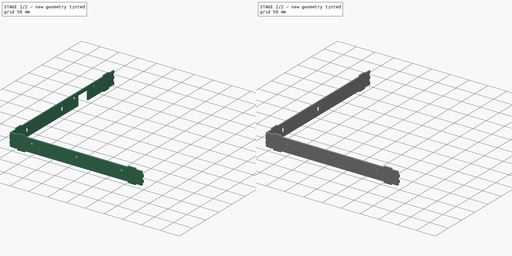
[diagram: build sequence overview — one tinted view per stage of 2, left to right]
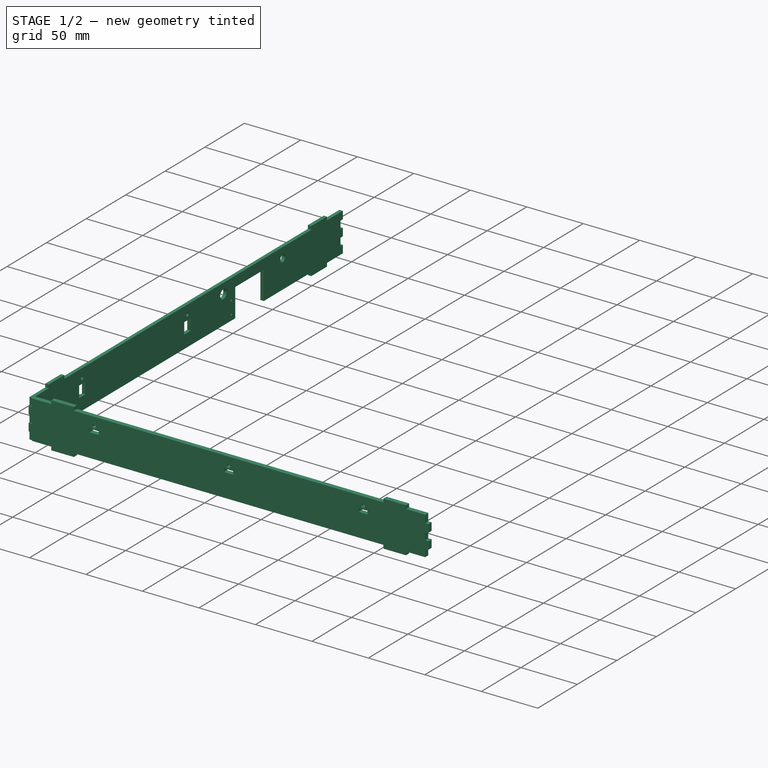
[diagram: stage 1 of 2 — iso view after this stage's code; geometry added in this stage tinted green]
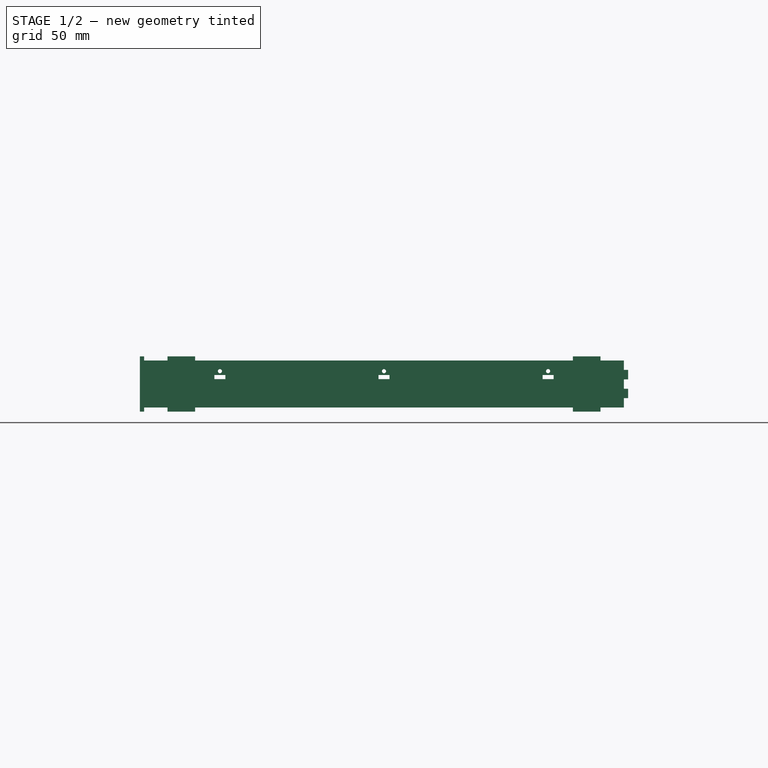
[diagram: stage 1 of 2 — front view after this stage's code; geometry added in this stage tinted green]
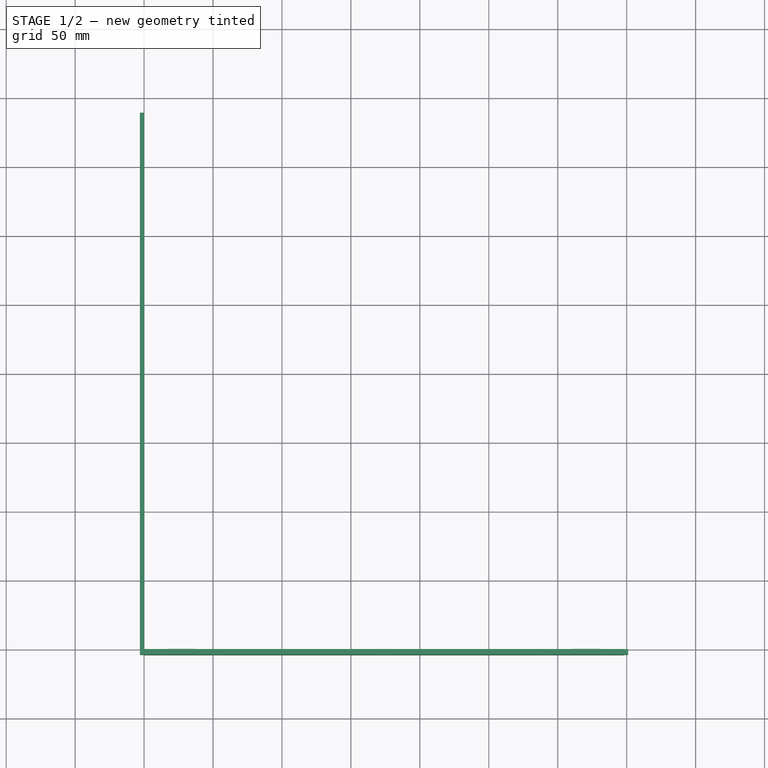
[diagram: stage 1 of 2 — top view after this stage's code; geometry added in this stage tinted green]
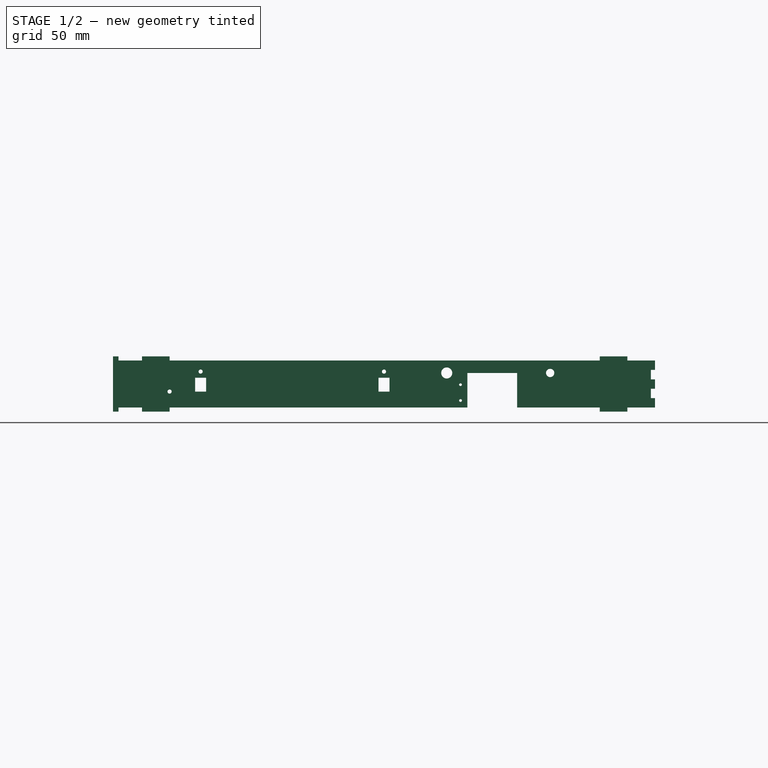
[diagram: stage 1 of 2 — right view after this stage's code; geometry added in this stage tinted green]
FCSTD DOCUMENT  (FreeCAD 0.19R24366 (Git))
Label: ri-walls
License: All rights reserved
LicenseURL: http://en.wikipedia.org/wiki/All_rights_reserved
objects: Sketcher::SketchObject×8, PartDesign::Pad×4, PartDesign::Body×4, Part::Part2DObjectPython×4
note: 24 computed .brp shape members not serialized (recipe doc carries the construction recipe); baked Part::Feature solids carry a one-line shape summary decoded from their .brp

FEATURE [PartDesign::Body] Body001  label="right"
  Group = -> [Sketch001,Pad001]
  Origin = -> Origin001
  Tip = -> Pad001
FEATURE [Sketcher::SketchObject] Sketch002
  FullyConstrained = true
  MapMode = 5
  Placement = pos=(0,0,0) rot=(1,0,0;1.5708rad)
  Support = -> [XZ_Plane002]
  expr: Constraints[119] = <<Sketch>>.Constraints.nosewidth
  expr: Constraints[117] = <<Sketch>>.Constraints.hole
  expr: Constraints[91] = <<Sketch>>.Constraints.base
  expr: Constraints[103] = <<Sketch>>.Constraints.thickness
  expr: Constraints[98] = <<Sketch>>.Constraints.baseplate
  expr: Constraints[102] = <<Sketch>>.Constraints.base - <<Sketch>>.Constraints.thickness
  expr: Constraints[104] = <<Sketch>>.Constraints.height
  expr: Constraints[105] = <<Sketch>>.Constraints.length
  sketch-geometry (54):
    g0: LineSegment StartX=0 StartY=34 StartZ=0 EndX=17 EndY=34 EndZ=0
    g1: LineSegment StartX=17 StartY=34 StartZ=0 EndX=17 EndY=37 EndZ=0
    g2: LineSegment StartX=17 StartY=37 StartZ=0 EndX=37 EndY=37 EndZ=0
    g3: LineSegment StartX=37 StartY=37 StartZ=0 EndX=37 EndY=34 EndZ=0
    g4: LineSegment StartX=37 StartY=34 StartZ=0 EndX=311 EndY=34 EndZ=0
    g5: LineSegment StartX=311 StartY=34 StartZ=0 EndX=311 EndY=37 EndZ=0
    g6: LineSegment StartX=311 StartY=37 StartZ=0 EndX=331 EndY=37 EndZ=0
    g7: LineSegment StartX=331 StartY=37 StartZ=0 EndX=331 EndY=34 EndZ=0
    g8: LineSegment StartX=331 StartY=34 StartZ=0 EndX=348 EndY=34 EndZ=0
    g9: LineSegment StartX=348 StartY=34 StartZ=0 EndX=348 EndY=27.2 EndZ=0
    g10: LineSegment StartX=348 StartY=27.2 StartZ=0 EndX=351 EndY=27.2 EndZ=0
    g11: LineSegment StartX=351 StartY=27.2 StartZ=0 EndX=351 EndY=20.4 EndZ=0
    g12: LineSegment StartX=351 StartY=20.4 StartZ=0 EndX=348 EndY=20.4 EndZ=0
    g13: LineSegment StartX=348 StartY=20.4 StartZ=0 EndX=348 EndY=13.6 EndZ=0
    g14: LineSegment StartX=348 StartY=13.6 StartZ=0 EndX=351 EndY=13.6 EndZ=0
    g15: LineSegment StartX=351 StartY=13.6 StartZ=0 EndX=351 EndY=6.8 EndZ=0
    g16: LineSegment StartX=351 StartY=6.8 StartZ=0 EndX=348 EndY=6.8 EndZ=0
    g17: LineSegment StartX=348 StartY=6.8 StartZ=0 EndX=348 EndY=0 EndZ=0
    g18: LineSegment StartX=348 StartY=0 StartZ=0 EndX=331 EndY=0 EndZ=0
    g19: LineSegment StartX=331 StartY=0 StartZ=0 EndX=331 EndY=-3 EndZ=0
    g20: LineSegment StartX=331 StartY=-3 StartZ=0 EndX=311 EndY=-3 EndZ=0
    g21: LineSegment StartX=311 StartY=-3 StartZ=0 EndX=311 EndY=-2.3839e-12 EndZ=0
    g22: LineSegment StartX=311 StartY=-2.3839e-12 StartZ=0 EndX=37 EndY=-2.3839e-12 EndZ=0
    g23: LineSegment StartX=37 StartY=-2.3839e-12 StartZ=0 EndX=37 EndY=-3 EndZ=0
    g24: LineSegment StartX=37 StartY=-3 StartZ=0 EndX=17 EndY=-3 EndZ=0
    g25: LineSegment StartX=17 StartY=-3 StartZ=0 EndX=17 EndY=0 EndZ=0
    g26: LineSegment StartX=17 StartY=0 StartZ=0 EndX=0 EndY=0 EndZ=0
    g27: LineSegment StartX=0 StartY=0 StartZ=0 EndX=0 EndY=6.8 EndZ=0
    g28: LineSegment StartX=0 StartY=6.8 StartZ=0 EndX=-3 EndY=6.8 EndZ=0
    g29: LineSegment StartX=-3 StartY=6.8 StartZ=0 EndX=-3 EndY=13.6 EndZ=0
    g30: LineSegment StartX=-3 StartY=13.6 StartZ=0 EndX=0 EndY=13.6 EndZ=0
    g31: LineSegment StartX=0 StartY=13.6 StartZ=0 EndX=0 EndY=20.4 EndZ=0
    g32: LineSegment StartX=0 StartY=20.4 StartZ=0 EndX=-3 EndY=20.4 EndZ=0
    g33: LineSegment StartX=-3 StartY=20.4 StartZ=0 EndX=-3 EndY=27.2 EndZ=0
    g34: LineSegment StartX=-3 StartY=27.2 StartZ=0 EndX=0 EndY=27.2 EndZ=0
    g35: LineSegment StartX=0 StartY=27.2 StartZ=0 EndX=0 EndY=34 EndZ=0
    g36: LineSegment StartX=170 StartY=23.5 StartZ=0 EndX=178 EndY=23.5 EndZ=0
    g37: LineSegment StartX=178 StartY=23.5 StartZ=0 EndX=178 EndY=20.5 EndZ=0
    g38: LineSegment StartX=178 StartY=20.5 StartZ=0 EndX=170 EndY=20.5 EndZ=0
    g39: LineSegment StartX=170 StartY=20.5 StartZ=0 EndX=170 EndY=23.5 EndZ=0
    g40: Circle CenterX=174 CenterY=26.3 CenterZ=0 NormalX=0 NormalY=0 NormalZ=1 AngleXU=0 Radius=1.5
    g41: GeomPoint X=174 Y=23.5 Z=0
    g42: LineSegment StartX=51 StartY=23.5 StartZ=0 EndX=59 EndY=23.5 EndZ=0
    g43: LineSegment StartX=59 StartY=23.5 StartZ=0 EndX=59 EndY=20.5 EndZ=0
    g44: LineSegment StartX=59 StartY=20.5 StartZ=0 EndX=51 EndY=20.5 EndZ=0
    g45: LineSegment StartX=51 StartY=20.5 StartZ=0 EndX=51 EndY=23.5 EndZ=0
    g46: LineSegment StartX=289 StartY=23.5 StartZ=0 EndX=297 EndY=23.5 EndZ=0
    g47: LineSegment StartX=297 StartY=23.5 StartZ=0 EndX=297 EndY=20.5 EndZ=0
    g48: LineSegment StartX=297 StartY=20.5 StartZ=0 EndX=289 EndY=20.5 EndZ=0
    g49: LineSegment StartX=289 StartY=20.5 StartZ=0 EndX=289 EndY=23.5 EndZ=0
    g50: Circle CenterX=293 CenterY=26.3 CenterZ=0 NormalX=0 NormalY=0 NormalZ=1 AngleXU=0 Radius=1.5
    g51: Circle CenterX=55 CenterY=26.3 CenterZ=0 NormalX=0 NormalY=0 NormalZ=1 AngleXU=0 Radius=1.5
    g52: GeomPoint X=293 Y=23.5 Z=0
    g53: GeomPoint X=55 Y=23.5 Z=0
  constraints (155):
    c: PointOnObject(g0,g-2)
    c: Horizontal(g0)
    c: Coincident(g0,g1)
    c: Coincident(g1,g2)
    c: Horizontal(g2)
    c: Coincident(g2,g3)
    c: Vertical(g3)
    c: Coincident(g3,g4)
    c: Horizontal(g4)
    c: Coincident(g4,g5)
    c: Vertical(g5)
    c: Coincident(g5,g6)
    c: Horizontal(g6)
    c: Coincident(g6,g7)
    c: Vertical(g7)
    c: Coincident(g7,g8)
    c: Horizontal(g8)
    c: Coincident(g8,g9)
    c: Vertical(g9)
    c: Coincident(g9,g10)
    c: Horizontal(g10)
    c: Coincident(g10,g11)
    c: Vertical(g11)
    c: Coincident(g11,g12)
    c: Horizontal(g12)
    c: Coincident(g12,g13)
    c: Vertical(g13)
    c: Coincident(g13,g14)
    c: Horizontal(g14)
    c: Coincident(g14,g15)
    c: Vertical(g15)
    c: Coincident(g15,g16)
    c: Horizontal(g16)
    c: Coincident(g16,g17)
    c: Vertical(g17)
    c: Coincident(g17,g18)
    c: Horizontal(g18)
    c: Coincident(g18,g19)
    c: Vertical(g19)
    c: Coincident(g19,g20)
    c: Horizontal(g20)
    c: Coincident(g20,g21)
    c: Vertical(g21)
    c: Coincident(g21,g22)
    c: Horizontal(g22)
    c: Coincident(g22,g23)
    c: Vertical(g23)
    c: Coincident(g23,g24)
    c: Horizontal(g24)
    c: Coincident(g24,g25)
    c: Vertical(g25)
    c: Coincident(g25,g26)
    c: Horizontal(g26)
    c: Coincident(g26,g27)
    c: Vertical(g27)
    c: Coincident(g27,g28)
    c: Horizontal(g28)
    c: Coincident(g28,g29)
    c: Vertical(g29)
    c: Coincident(g29,g30)
    c: Horizontal(g30)
    c: Coincident(g30,g31)
    c: Vertical(g31)
    c: Coincident(g31,g32)
    c: Horizontal(g32)
    c: Coincident(g32,g33)
    c: Vertical(g33)
    c: Coincident(g33,g34)
    c: Horizontal(g34)
    c: Coincident(g34,g35)
    c: Vertical(g35)
    c: Coincident(g35,g0)
    c: Equal(g34,g32)
    c: Equal(g32,g30)
    c: Equal(g28,g10)
    c: Equal(g10,g12)
    c: Equal(g12,g14)
    c: Equal(g14,g16)
    c: Equal(g33,g35)
    c: Equal(g35,g31)
    c: Equal(g31,g29)
    c: Equal(g29,g27)
    c: Equal(g27,g9)
    c: Equal(g9,g11)
    c: Equal(g11,g13)
    c: Equal(g13,g15)
    c: Equal(g15,g17)
    c: Equal(g20,g6)
    c: Equal(g6,g2)
    c: Equal(g2,g24)
    c: Vertical(g1)
    c: DistanceX(g2,g2) = 20
    c: Equal(g25,g23)
    c: Equal(g23,g1)
    c: Equal(g1,g3)
    c: Equal(g3,g5)
    c: Equal(g5,g7)
    c: Equal(g7,g19)
    c: DistanceY(g1,g1) = 3
    c: Equal(g0,g26)
    c: Equal(g26,g8)
    c: Equal(g8,g18)
    c: DistanceX(g0,g0) = 17
    c: DistanceX(g34,g34) = 3
    c: DistanceY(g26,g0) = 34
    c: DistanceX(g33,g10) = 354
    c: Coincident(g26,g-1)
    c: Coincident(g36,g37)
    c: Coincident(g37,g38)
    c: Coincident(g38,g39)
    c: Coincident(g39,g36)
    c: Horizontal(g36)
    c: Horizontal(g38)
    c: Vertical(g37)
    c: Vertical(g39)
    c: Symmetric(g36,g36,g41)
    c: Vertical(g41,g40)
    c: Diameter(g40) = 3
    c: DistanceY(g41,g40) = 2.8
    c: DistanceX(g36,g36) = 8
    c: DistanceY(g39,g39) = 3
    c: DistanceY(g36,g0) = 10.5
    c: DistanceX(g33,g36) = 173
    c: Coincident(g42,g43)
    c: Coincident(g43,g44)
    c: Coincident(g44,g45)
    c: Coincident(g45,g42)
    c: Horizontal(g42)
    c: Horizontal(g44)
    c: Vertical(g43)
    c: Vertical(g45)
    c: Coincident(g46,g47)
    c: Coincident(g47,g48)
    c: Coincident(g48,g49)
    c: Coincident(g49,g46)
    c: Horizontal(g46)
    c: Horizontal(g48)
    c: Vertical(g47)
    c: Vertical(g49)
    c: Equal(g49,g39)
    c: Equal(g39,g45)
    c: Equal(g44,g38)
    c: Equal(g38,g48)
    c: Horizontal(g48,g38)
    c: Horizontal(g38,g44)
    c: DistanceX(g22,g44) = 14
    c: DistanceX(g47,g21) = 14
    c: Equal(g51,g40)
    c: Equal(g40,g50)
    c: Horizontal(g50,g40)
    c: Horizontal(g40,g51)
    c: Symmetric(g46,g46,g52)
    c: Vertical(g52,g50)
    c: Symmetric(g42,g42,g53)
    c: Vertical(g53,g51)
FEATURE [PartDesign::Pad] Pad002
  Direction = (1,1,1)
  Length = 4
  Length2 = 100
  Placement = pos=(0,0,0) rot=(1,0,0;1.5708rad)
  Profile = -> Sketch002
  Refine = true
  Type = 0
  expr: Length = 4mm
FEATURE [PartDesign::Body] Body002  label="bottom"
  Group = -> [Sketch002,Pad002]
  Origin = -> Origin002
  Placement = pos=(0,389,0) rot=(0,0,1;0rad)
  Tip = -> Pad002
  expr: .Placement.Base.y = <<Sketch001>>.Constraints.length - <<Sketch>>.Constraints.thickness
FEATURE [Sketcher::SketchObject] Sketch003
  FullyConstrained = true
  MapMode = 5
  Placement = pos=(0,0,0) rot=(0.57735,0.57735,0.57735;2.0944rad)
  Support = -> [YZ_Plane003]
  expr: Constraints[91] = <<Sketch>>.Constraints.baseplate
  expr: Constraints[131] = <<Sketch>>.Constraints.hole
  expr: Constraints[90] = <<Sketch>>.Constraints.base
  expr: Constraints[134] = <<Sketch>>.Constraints.nosedistance
  expr: Constraints[104] = <<Sketch>>.Constraints.thickness
  expr: Constraints[92] = <<Sketch>>.Constraints.thickness
  expr: Constraints[93] = <<Sketch>>.Constraints.height
  expr: Constraints[132] = <<Sketch>>.Constraints.noseheight
  expr: Constraints[135] = Sketch001.Constraints.firstnose
  expr: Constraints[124] = <<Sketch>>.Constraints.holedistance
  expr: Constraints[136] = <<Sketch001>>.Constraints.secondnose
  expr: Constraints[94] = <<Sketch001>>.Constraints.length
  expr: Constraints[133] = <<Sketch>>.Constraints.nosewidth
  sketch-geometry (58):
    g0: LineSegment StartX=17 StartY=37 StartZ=0 EndX=17 EndY=34 EndZ=0
    g1: LineSegment StartX=17 StartY=34 StartZ=0 EndX=-3 EndY=34 EndZ=0
    g2: LineSegment StartX=-3 StartY=34 StartZ=0 EndX=-3 EndY=27.2 EndZ=0
    g3: LineSegment StartX=-3 StartY=27.2 StartZ=0 EndX=3.957e-13 EndY=27.2 EndZ=0
    g4: LineSegment StartX=3.957e-13 StartY=27.2 StartZ=0 EndX=3.957e-13 EndY=20.4 EndZ=0
    g5: LineSegment StartX=3.957e-13 StartY=20.4 StartZ=0 EndX=-3 EndY=20.4 EndZ=0
    g6: LineSegment StartX=-3 StartY=20.4 StartZ=0 EndX=-3 EndY=13.6 EndZ=0
    g7: LineSegment StartX=-3 StartY=13.6 StartZ=0 EndX=3.957e-13 EndY=13.6 EndZ=0
    g8: LineSegment StartX=3.957e-13 StartY=13.6 StartZ=0 EndX=3.957e-13 EndY=6.8 EndZ=0
    g9: LineSegment StartX=3.957e-13 StartY=6.8 StartZ=0 EndX=-3 EndY=6.8 EndZ=0
    g10: LineSegment StartX=-3 StartY=6.8 StartZ=0 EndX=-3 EndY=0 EndZ=0
    g11: LineSegment StartX=-3 StartY=0 StartZ=0 EndX=17 EndY=0 EndZ=0
    g12: LineSegment StartX=17 StartY=0 StartZ=0 EndX=17 EndY=-3 EndZ=0
    g13: LineSegment StartX=17 StartY=-3 StartZ=0 EndX=37 EndY=-3 EndZ=0
    g14: LineSegment StartX=37 StartY=-3 StartZ=0 EndX=37 EndY=0 EndZ=0
    g15: LineSegment StartX=349 StartY=3.72129e-11 StartZ=0 EndX=349 EndY=-3 EndZ=0
    g16: LineSegment StartX=349 StartY=-3 StartZ=0 EndX=369 EndY=-3 EndZ=0
    g17: LineSegment StartX=369 StartY=-3 StartZ=0 EndX=369 EndY=3.76086e-11 EndZ=0
    g18: LineSegment StartX=369 StartY=3.76086e-11 StartZ=0 EndX=389 EndY=3.76086e-11 EndZ=0
    g19: LineSegment StartX=389 StartY=3.76086e-11 StartZ=0 EndX=389 EndY=6.8 EndZ=0
    g20: LineSegment StartX=389 StartY=6.8 StartZ=0 EndX=386 EndY=6.8 EndZ=0
    g21: LineSegment StartX=386 StartY=6.8 StartZ=0 EndX=386 EndY=13.6 EndZ=0
    g22: LineSegment StartX=386 StartY=13.6 StartZ=0 EndX=389 EndY=13.6 EndZ=0
    g23: LineSegment StartX=389 StartY=13.6 StartZ=0 EndX=389 EndY=20.4 EndZ=0
    g24: LineSegment StartX=389 StartY=20.4 StartZ=0 EndX=386 EndY=20.4 EndZ=0
    g25: LineSegment StartX=386 StartY=20.4 StartZ=0 EndX=386 EndY=27.2 EndZ=0
    g26: LineSegment StartX=386 StartY=27.2 StartZ=0 EndX=389 EndY=27.2 EndZ=0
    g27: LineSegment StartX=389 StartY=27.2 StartZ=0 EndX=389 EndY=34 EndZ=0
    g28: LineSegment StartX=389 StartY=34 StartZ=0 EndX=369 EndY=34 EndZ=0
    g29: LineSegment StartX=369 StartY=34 StartZ=0 EndX=369 EndY=37 EndZ=0
    g30: LineSegment StartX=369 StartY=37 StartZ=0 EndX=349 EndY=37 EndZ=0
    g31: LineSegment StartX=349 StartY=37 StartZ=0 EndX=349 EndY=34 EndZ=0
    g32: LineSegment StartX=349 StartY=34 StartZ=0 EndX=37 EndY=34 EndZ=0
    g33: LineSegment StartX=37 StartY=34 StartZ=0 EndX=37 EndY=37 EndZ=0
    g34: LineSegment StartX=37 StartY=37 StartZ=0 EndX=17 EndY=37 EndZ=0
    g35: LineSegment StartX=55.5 StartY=21.5 StartZ=0 EndX=63.5 EndY=21.5 EndZ=0
    g36: LineSegment StartX=63.5 StartY=21.5 StartZ=0 EndX=63.5 EndY=11.5 EndZ=0
    g37: LineSegment StartX=63.5 StartY=11.5 StartZ=0 EndX=55.5 EndY=11.5 EndZ=0
    g38: LineSegment StartX=55.5 StartY=11.5 StartZ=0 EndX=55.5 EndY=21.5 EndZ=0
    g39: LineSegment StartX=188.5 StartY=21.5 StartZ=0 EndX=196.5 EndY=21.5 EndZ=0
    g40: LineSegment StartX=196.5 StartY=21.5 StartZ=0 EndX=196.5 EndY=11.5 EndZ=0
    g41: LineSegment StartX=196.5 StartY=11.5 StartZ=0 EndX=188.5 EndY=11.5 EndZ=0
    g42: LineSegment StartX=188.5 StartY=11.5 StartZ=0 EndX=188.5 EndY=21.5 EndZ=0
    g43: Circle CenterX=59.5 CenterY=26 CenterZ=0 NormalX=0 NormalY=0 NormalZ=1 AngleXU=0 Radius=1.5
    g44: Circle CenterX=192.5 CenterY=26 CenterZ=0 NormalX=0 NormalY=0 NormalZ=1 AngleXU=0 Radius=1.5
    g45: GeomPoint X=59.5 Y=21.5 Z=0
    g46: GeomPoint X=192.5 Y=21.5 Z=0
    g47: LineSegment StartX=349 StartY=3.72129e-11 StartZ=0 EndX=289 EndY=3.72129e-11 EndZ=0
    g48: LineSegment StartX=289 StartY=3.72129e-11 StartZ=0 EndX=289 EndY=25 EndZ=0
    g49: LineSegment StartX=289 StartY=25 StartZ=0 EndX=253 EndY=25 EndZ=0
    g50: LineSegment StartX=253 StartY=25 StartZ=0 EndX=253 EndY=0 EndZ=0
    g51: LineSegment StartX=253 StartY=0 StartZ=0 EndX=37 EndY=0 EndZ=0
    g52: Circle CenterX=238 CenterY=25 CenterZ=0 NormalX=0 NormalY=0 NormalZ=1 AngleXU=0 Radius=4
    g53: GeomPoint X=289 Y=12.5 Z=0
    g54: Circle CenterX=313 CenterY=25 CenterZ=0 NormalX=0 NormalY=0 NormalZ=1 AngleXU=0 Radius=3
    g55: Circle CenterX=248 CenterY=16.5 CenterZ=0 NormalX=0 NormalY=0 NormalZ=1 AngleXU=0 Radius=1
    g56: Circle CenterX=248 CenterY=5 CenterZ=0 NormalX=0 NormalY=0 NormalZ=1 AngleXU=0 Radius=1
    g57: Circle CenterX=37 CenterY=11.5 CenterZ=0 NormalX=0 NormalY=0 NormalZ=1 AngleXU=0 Radius=1.5
  constraints (168):
    c: Coincident(g0,g1)
    c: Horizontal(g1)
    c: Coincident(g1,g2)
    c: Vertical(g2)
    c: Coincident(g2,g3)
    c: Horizontal(g3)
    c: Coincident(g3,g4)
    c: Vertical(g4)
    c: Coincident(g4,g5)
    c: Horizontal(g5)
    c: Coincident(g5,g6)
    c: Vertical(g6)
    c: Coincident(g6,g7)
    c: Horizontal(g7)
    c: Coincident(g7,g8)
    c: Vertical(g8)
    c: Coincident(g8,g9)
    c: Horizontal(g9)
    c: Coincident(g9,g10)
    c: Vertical(g10)
    c: Coincident(g10,g11)
    c: Horizontal(g11)
    c: Coincident(g11,g12)
    c: Vertical(g12)
    c: Coincident(g12,g13)
    c: Horizontal(g13)
    c: Coincident(g13,g14)
    c: Vertical(g14)
    c: Vertical(g15)
    c: Coincident(g15,g16)
    c: Horizontal(g16)
    c: Coincident(g16,g17)
    c: Vertical(g17)
    c: Coincident(g17,g18)
    c: Horizontal(g18)
    c: Coincident(g18,g19)
    c: Vertical(g19)
    c: Coincident(g19,g20)
    c: Horizontal(g20)
    c: Coincident(g20,g21)
    c: Vertical(g21)
    c: Coincident(g21,g22)
    c: Horizontal(g22)
    c: Coincident(g22,g23)
    c: Vertical(g23)
    c: Coincident(g23,g24)
    c: Horizontal(g24)
    c: Coincident(g24,g25)
    c: Vertical(g25)
    c: Coincident(g25,g26)
    c: Horizontal(g26)
    c: Coincident(g26,g27)
    c: Vertical(g27)
    c: Coincident(g27,g28)
    c: Horizontal(g28)
    c: Coincident(g28,g29)
    c: Vertical(g29)
    c: Coincident(g29,g30)
    c: Horizontal(g30)
    c: Coincident(g30,g31)
    c: Vertical(g31)
    c: Coincident(g31,g32)
    c: Horizontal(g32)
    c: Coincident(g32,g33)
    c: Vertical(g33)
    c: Coincident(g33,g34)
    c: Coincident(g34,g0)
    c: Horizontal(g34)
    c: Vertical(g0)
    c: Equal(g0,g33)
    c: Equal(g33,g12)
    c: Equal(g12,g14)
    c: Equal(g14,g31)
    c: Equal(g31,g29)
    c: Equal(g29,g17)
    c: Equal(g17,g15)
    c: Equal(g16,g18)
    c: Equal(g18,g28)
    c: Equal(g28,g30)
    c: Equal(g30,g34)
    c: Equal(g34,g1)
    c: Equal(g1,g11)
    c: Equal(g11,g13)
    c: Equal(g3,g5)
    c: Equal(g5,g7)
    c: Equal(g7,g9)
    c: Equal(g9,g26)
    c: Equal(g26,g24)
    c: Equal(g24,g22)
    c: Equal(g22,g20)
    c: DistanceX(g34,g34) = 20
    c: DistanceY(g0,g0) = 3
    c: DistanceX(g3,g3) = 3
    c: DistanceY(g10,g1) = 34
    c: DistanceX(g1,g27) = 392
    c: Equal(g19,g21)
    c: Equal(g21,g23)
    c: Equal(g23,g25)
    c: Equal(g25,g27)
    c: Equal(g27,g10)
    c: Equal(g10,g8)
    c: Equal(g8,g6)
    c: Equal(g6,g4)
    c: Horizontal(g10,g-1)
    c: DistanceX(g10,g-1) = 3
    c: Coincident(g35,g36)
    c: Coincident(g36,g37)
    c: Coincident(g37,g38)
    c: Coincident(g38,g35)
    c: Horizontal(g35)
    c: Horizontal(g37)
    c: Vertical(g36)
    c: Vertical(g38)
    c: Coincident(g39,g40)
    c: Coincident(g40,g41)
    c: Coincident(g41,g42)
    c: Coincident(g42,g39)
    c: Horizontal(g39)
    c: Horizontal(g41)
    c: Vertical(g40)
    c: Vertical(g42)
    c: Symmetric(g35,g35,g45)
    c: Symmetric(g39,g39,g46)
    c: Vertical(g45,g43)
    c: DistanceY(g45,g43) = 4.5
    c: Horizontal(g43,g44)
    c: Horizontal(g39,g35)
    c: Equal(g38,g42)
    c: Equal(g39,g35)
    c: Equal(g43,g44)
    c: Vertical(g44,g46)
    c: Diameter(g43) = 3
    c: DistanceY(g38,g38) = 10
    c: DistanceX(g35,g35) = 8
    c: DistanceY(g35,g1) = 12.5
    c: DistanceX(g1,g35) = 58.5
    c: DistanceX(g1,g39) = 191.5
    c: Coincident(g15,g47)
    c: Coincident(g47,g48)
    c: Coincident(g48,g49)
    c: Horizontal(g49)
    c: Coincident(g49,g50)
    c: Vertical(g50)
    c: Coincident(g50,g51)
    c: Horizontal(g51)
    c: Vertical(g48)
    c: Coincident(g51,g14)
    c: Horizontal(g47)
    c: DistanceX(g49,g49) = 36
    c: DistanceY(g50,g50) = 25
    c: DistanceX(g48,g27) = 100
    c: Equal(g48,g50)
    c: Diameter(g52) = 8
    c: Symmetric(g48,g47,g53)
    c: DistanceX(g52,g50) = 15
    c: Diameter(g54) = 6
    c: Horizontal(g54,g48)
    c: DistanceX(g48,g54) = 24
    c: Horizontal(g52,g49)
    c: Equal(g56,g55)
    c: Diameter(g55) = 2
    c: Vertical(g55,g56)
    c: DistanceY(g56,g55) = 11.5
    c: DistanceY(g50,g56) = 5
    c: DistanceX(g55,g49) = 5
    c: Equal(g43,g57)
    c: Horizontal(g57,g37)
    c: Vertical(g57,g32)
FEATURE [PartDesign::Pad] Pad003
  Direction = (1,1,1)
  Length = 3
  Length2 = 100
  Placement = pos=(0,0,0) rot=(0.57735,0.57735,0.57735;2.0944rad)
  Profile = -> Sketch003
  Refine = true
  Reversed = true
  Type = 0
  expr: Length = <<Sketch>>.Constraints.thickness
FEATURE [PartDesign::Body] Body003  label="left"
  Group = -> [Sketch003,Pad003]
  Origin = -> Origin003
  Placement = pos=(351,0,0) rot=(0,0,1;0rad)
  Tip = -> Pad003
  expr: .Placement.Base.x = <<Sketch>>.Constraints.length - <<Sketch>>.Constraints.thickness
FEATURE [Part::Part2DObjectPython] Shape2DView  # Draft 2D object (typed FeaturePython)
  Base = -> Pad
  FaceNumbers = [47]
  FuseArch = false
  HiddenLines = false
  InPlace = true
  Projection = (0,-1,0)
  ProjectionMode = 0
  SegmentLength = 0.05
  Tessellation = false
  VisibleOnly = false
FEATURE [Sketcher::SketchObject] Sketch004  label="top001"
  FullyConstrained = false
  sketch-geometry (46):
    g0: LineSegment StartX=-27.2 StartY=2e-16 StartZ=0 EndX=-34 EndY=2e-16 EndZ=0
    g1: LineSegment StartX=-27.2 StartY=2e-16 StartZ=0 EndX=-27.2 EndY=-3 EndZ=0
    g2: LineSegment StartX=-27.2 StartY=-3 StartZ=0 EndX=-20.4 EndY=-3 EndZ=0
    g3: LineSegment StartX=-20.4 StartY=-3 StartZ=0 EndX=-20.4 EndY=0 EndZ=0
    g4: LineSegment StartX=-20.4 StartY=-2e-16 StartZ=0 EndX=-13.6 EndY=-2e-16 EndZ=0
    g5: LineSegment StartX=-13.6 StartY=-2e-16 StartZ=0 EndX=-13.6 EndY=-3 EndZ=0
    g6: LineSegment StartX=-13.6 StartY=-3 StartZ=0 EndX=-6.8 EndY=-3 EndZ=0
    g7: LineSegment StartX=-6.8 StartY=-3 StartZ=0 EndX=-6.8 EndY=0 EndZ=0
    g8: LineSegment StartX=-6.8 StartY=0 StartZ=0 EndX=9e-16 EndY=0 EndZ=0
    g9: LineSegment StartX=7e-16 StartY=0 StartZ=0 EndX=7e-16 EndY=17 EndZ=0
    g10: LineSegment StartX=7e-16 StartY=17 StartZ=0 EndX=3 EndY=17 EndZ=0
    g11: LineSegment StartX=3 StartY=17 StartZ=0 EndX=3 EndY=37 EndZ=0
    g12: LineSegment StartX=3 StartY=37 StartZ=0 EndX=9e-16 EndY=37 EndZ=0
    g13: LineSegment StartX=7e-16 StartY=37 StartZ=0 EndX=7e-16 EndY=311 EndZ=0
    g14: LineSegment StartX=7e-16 StartY=311 StartZ=0 EndX=3 EndY=311 EndZ=0
    g15: LineSegment StartX=3 StartY=311 StartZ=0 EndX=3 EndY=331 EndZ=0
    g16: LineSegment StartX=3 StartY=331 StartZ=0 EndX=9e-16 EndY=331 EndZ=0
    g17: LineSegment StartX=7e-16 StartY=331 StartZ=0 EndX=7e-16 EndY=348 EndZ=0
    g18: LineSegment StartX=7e-16 StartY=348 StartZ=0 EndX=-6.8 EndY=348 EndZ=0
    g19: LineSegment StartX=-6.8 StartY=348 StartZ=0 EndX=-6.8 EndY=351 EndZ=0
    g20: LineSegment StartX=-6.8 StartY=351 StartZ=0 EndX=-13.6 EndY=351 EndZ=0
    g21: LineSegment StartX=-13.6 StartY=351 StartZ=0 EndX=-13.6 EndY=348 EndZ=0
    g22: LineSegment StartX=-13.6 StartY=348 StartZ=0 EndX=-20.4 EndY=348 EndZ=0
    g23: LineSegment StartX=-20.4 StartY=351 StartZ=0 EndX=-20.4 EndY=348 EndZ=0
    g24: LineSegment StartX=-27.2 StartY=351 StartZ=0 EndX=-20.4 EndY=351 EndZ=0
    g25: LineSegment StartX=-27.2 StartY=348 StartZ=0 EndX=-27.2 EndY=351 EndZ=0
    g26: LineSegment StartX=-34 StartY=348 StartZ=0 EndX=-27.2 EndY=348 EndZ=0
    g27: LineSegment StartX=-34 StartY=331 StartZ=0 EndX=-34 EndY=348 EndZ=0
    g28: LineSegment StartX=-37 StartY=331 StartZ=0 EndX=-34 EndY=331 EndZ=0
    g29: LineSegment StartX=-37 StartY=331 StartZ=0 EndX=-37 EndY=311 EndZ=0
    g30: LineSegment StartX=-37 StartY=311 StartZ=0 EndX=-34 EndY=311 EndZ=0
    g31: LineSegment StartX=-34 StartY=311 StartZ=0 EndX=-34 EndY=37 EndZ=0
    g32: LineSegment StartX=-34 StartY=37 StartZ=0 EndX=-37 EndY=37 EndZ=0
    g33: LineSegment StartX=-37 StartY=37 StartZ=0 EndX=-37 EndY=17 EndZ=0
    g34: LineSegment StartX=-34 StartY=17 StartZ=0 EndX=-37 EndY=17 EndZ=0
    g35: LineSegment StartX=-34 StartY=2e-16 StartZ=0 EndX=-34 EndY=17 EndZ=0
    g36: LineSegment StartX=-21.5 StartY=285 StartZ=0 EndX=-21.5 EndY=293 EndZ=0
    g37: LineSegment StartX=-21.5 StartY=293 StartZ=0 EndX=-11.5 EndY=293 EndZ=0
    g38: LineSegment StartX=-11.5 StartY=293 StartZ=0 EndX=-11.5 EndY=285 EndZ=0
    g39: LineSegment StartX=-11.5 StartY=285 StartZ=0 EndX=-21.5 EndY=285 EndZ=0
    g40: LineSegment StartX=-21.5 StartY=55 StartZ=0 EndX=-21.5 EndY=63 EndZ=0
    g41: LineSegment StartX=-21.5 StartY=63 StartZ=0 EndX=-11.5 EndY=63 EndZ=0
    g42: LineSegment StartX=-11.5 StartY=63 StartZ=0 EndX=-11.5 EndY=55 EndZ=0
    g43: LineSegment StartX=-11.5 StartY=55 StartZ=0 EndX=-21.5 EndY=55 EndZ=0
    g44: Circle CenterX=-26 CenterY=289 CenterZ=0 NormalX=0 NormalY=0 NormalZ=1 AngleXU=1.5708 Radius=1.5
    g45: Circle CenterX=-26 CenterY=59 CenterZ=0 NormalX=0 NormalY=0 NormalZ=1 AngleXU=1.5708 Radius=1.5
FEATURE [Part::Part2DObjectPython] Shape2DView001  # Draft 2D object (typed FeaturePython)
  Base = -> Pad001
  FaceNumbers = [47]
  FuseArch = false
  HiddenLines = false
  InPlace = true
  Projection = (-1,0,0)
  ProjectionMode = 0
  SegmentLength = 0.05
  Tessellation = false
  VisibleOnly = false
FEATURE [Sketcher::SketchObject] Sketch005  label="right001"
  FullyConstrained = false
  sketch-geometry (46):
    g0: LineSegment StartX=-27.2 StartY=3 StartZ=0 EndX=-27.2 EndY=2.22431e-11 EndZ=0
    g1: LineSegment StartX=-27.2 StartY=2.2242e-11 StartZ=0 EndX=-20.4 EndY=2.22443e-11 EndZ=0
    g2: LineSegment StartX=-20.4 StartY=2.22443e-11 StartZ=0 EndX=-20.4 EndY=3 EndZ=0
    g3: LineSegment StartX=-20.4 StartY=3 StartZ=0 EndX=-13.6 EndY=3 EndZ=0
    g4: LineSegment StartX=-13.6 StartY=3 StartZ=0 EndX=-13.6 EndY=-4.9e-15 EndZ=0
    g5: LineSegment StartX=-13.6 StartY=-5.9e-15 StartZ=0 EndX=-6.8 EndY=-3.6e-15 EndZ=0
    g6: LineSegment StartX=-6.8 StartY=-3.6e-15 StartZ=0 EndX=-6.8 EndY=3 EndZ=0
    g7: LineSegment StartX=-6.8 StartY=3 StartZ=0 EndX=-2.7e-15 EndY=3 EndZ=0
    g8: LineSegment StartX=-5e-16 StartY=3 StartZ=0 EndX=1.06e-14 EndY=-17 EndZ=0
    g9: LineSegment StartX=1.06e-14 StartY=-17 StartZ=0 EndX=3 EndY=-17 EndZ=0
    g10: LineSegment StartX=3 StartY=-17 StartZ=0 EndX=3 EndY=-37 EndZ=0
    g11: LineSegment StartX=3 StartY=-37 StartZ=0 EndX=4.67231e-11 EndY=-37 EndZ=0
    g12: LineSegment StartX=4.67226e-11 StartY=-37 StartZ=0 EndX=4.68958e-11 EndY=-349 EndZ=0
    g13: LineSegment StartX=4.68958e-11 StartY=-349 StartZ=0 EndX=3 EndY=-349 EndZ=0
    g14: LineSegment StartX=3 StartY=-349 StartZ=0 EndX=3 EndY=-369 EndZ=0
    g15: LineSegment StartX=3 StartY=-369 StartZ=0 EndX=9.68359e-11 EndY=-369 EndZ=0
    g16: LineSegment StartX=9.68354e-11 StartY=-369 StartZ=0 EndX=9.68465e-11 EndY=-389 EndZ=0
    g17: LineSegment StartX=-6.8 StartY=-389 StartZ=0 EndX=9.68443e-11 EndY=-389 EndZ=0
    g18: LineSegment StartX=-6.8 StartY=-386 StartZ=0 EndX=-6.8 EndY=-389 EndZ=0
    g19: LineSegment StartX=-13.6 StartY=-386 StartZ=0 EndX=-6.8 EndY=-386 EndZ=0
    g20: LineSegment StartX=-13.6 StartY=-389 StartZ=0 EndX=-13.6 EndY=-386 EndZ=0
    g21: LineSegment StartX=-20.4 StartY=-389 StartZ=0 EndX=-13.6 EndY=-389 EndZ=0
    g22: LineSegment StartX=-20.4 StartY=-386 StartZ=0 EndX=-20.4 EndY=-389 EndZ=0
    g23: LineSegment StartX=-20.4 StartY=-386 StartZ=0 EndX=-27.2 EndY=-386 EndZ=0
    g24: LineSegment StartX=-27.2 StartY=-386 StartZ=0 EndX=-27.2 EndY=-389 EndZ=0
    g25: LineSegment StartX=-27.2 StartY=-389 StartZ=0 EndX=-34 EndY=-389 EndZ=0
    g26: LineSegment StartX=-34 StartY=-389 StartZ=0 EndX=-34 EndY=-369 EndZ=0
    g27: LineSegment StartX=-34 StartY=-369 StartZ=0 EndX=-37 EndY=-369 EndZ=0
    g28: LineSegment StartX=-37 StartY=-369 StartZ=0 EndX=-37 EndY=-349 EndZ=0
    g29: LineSegment StartX=-37 StartY=-349 StartZ=0 EndX=-34 EndY=-349 EndZ=0
    g30: LineSegment StartX=-34 StartY=-349 StartZ=0 EndX=-34 EndY=-37 EndZ=0
    g31: LineSegment StartX=-34 StartY=-37 StartZ=0 EndX=-37 EndY=-37 EndZ=0
    g32: LineSegment StartX=-37 StartY=-37 StartZ=0 EndX=-37 EndY=-17 EndZ=0
    g33: LineSegment StartX=-37 StartY=-17 StartZ=0 EndX=-34 EndY=-17 EndZ=0
    g34: LineSegment StartX=-34 StartY=-17 StartZ=0 EndX=-34 EndY=3 EndZ=0
    g35: LineSegment StartX=-27.2 StartY=3 StartZ=0 EndX=-34 EndY=3 EndZ=0
    g36: LineSegment StartX=-21.5 StartY=-188.5 StartZ=0 EndX=-21.5 EndY=-196.5 EndZ=0
    g37: LineSegment StartX=-21.5 StartY=-196.5 StartZ=0 EndX=-11.5 EndY=-196.5 EndZ=0
    g38: LineSegment StartX=-11.5 StartY=-196.5 StartZ=0 EndX=-11.5 EndY=-188.5 EndZ=0
    g39: LineSegment StartX=-11.5 StartY=-188.5 StartZ=0 EndX=-21.5 EndY=-188.5 EndZ=0
    g40: LineSegment StartX=-11.5 StartY=-63.5 StartZ=0 EndX=-21.5 EndY=-63.5 EndZ=0
    g41: LineSegment StartX=-11.5 StartY=-55.5 StartZ=0 EndX=-11.5 EndY=-63.5 EndZ=0
    g42: LineSegment StartX=-21.5 StartY=-55.5 StartZ=0 EndX=-11.5 EndY=-55.5 EndZ=0
    g43: LineSegment StartX=-21.5 StartY=-63.5 StartZ=0 EndX=-21.5 EndY=-55.5 EndZ=0
    g44: Circle CenterX=-26 CenterY=-192.5 CenterZ=0 NormalX=0 NormalY=0 NormalZ=-1 AngleXU=-1.5708 Radius=1.5
    g45: Circle CenterX=-26 CenterY=-59.5 CenterZ=0 NormalX=0 NormalY=0 NormalZ=-1 AngleXU=-1.5708 Radius=1.5
FEATURE [Part::Part2DObjectPython] Shape2DView004  # Draft 2D object (typed FeaturePython)
  Base = -> Pad002
  FaceNumbers = [52]
  FuseArch = false
  HiddenLines = false
  InPlace = true
  Projection = (-8.74228e-08,1,0)
  ProjectionMode = 0
  SegmentLength = 0.05
  Tessellation = false
  VisibleOnly = false
FEATURE [Sketcher::SketchObject] Sketch008  label="bottom001"
  FullyConstrained = false
  sketch-geometry (51):
    g0: LineSegment StartX=0 StartY=-34 StartZ=0 EndX=17 EndY=-34 EndZ=0
    g1: LineSegment StartX=17 StartY=-34 StartZ=0 EndX=17 EndY=-37 EndZ=0
    g2: LineSegment StartX=17 StartY=-37 StartZ=0 EndX=37 EndY=-37 EndZ=0
    g3: LineSegment StartX=37 StartY=-37 StartZ=0 EndX=37 EndY=-34 EndZ=0
    g4: LineSegment StartX=37 StartY=-34 StartZ=0 EndX=311 EndY=-34 EndZ=0
    g5: LineSegment StartX=311 StartY=-34 StartZ=0 EndX=311 EndY=-37 EndZ=0
    g6: LineSegment StartX=311 StartY=-37 StartZ=0 EndX=331 EndY=-37 EndZ=0
    g7: LineSegment StartX=331 StartY=-37 StartZ=0 EndX=331 EndY=-34 EndZ=0
    g8: LineSegment StartX=331 StartY=-34 StartZ=0 EndX=348 EndY=-34 EndZ=0
    g9: LineSegment StartX=348 StartY=-34 StartZ=0 EndX=348 EndY=-27.2 EndZ=0
    g10: LineSegment StartX=348 StartY=-27.2 StartZ=0 EndX=351 EndY=-27.2 EndZ=0
    g11: LineSegment StartX=351 StartY=-27.2 StartZ=0 EndX=351 EndY=-20.4 EndZ=0
    g12: LineSegment StartX=351 StartY=-20.4 StartZ=0 EndX=348 EndY=-20.4 EndZ=0
    g13: LineSegment StartX=348 StartY=-20.4 StartZ=0 EndX=348 EndY=-13.6 EndZ=0
    g14: LineSegment StartX=348 StartY=-13.6 StartZ=0 EndX=351 EndY=-13.6 EndZ=0
    g15: LineSegment StartX=351 StartY=-13.6 StartZ=0 EndX=351 EndY=-6.8 EndZ=0
    g16: LineSegment StartX=351 StartY=-6.8 StartZ=0 EndX=348 EndY=-6.8 EndZ=0
    g17: LineSegment StartX=348 StartY=-6.8 StartZ=0 EndX=348 EndY=0 EndZ=0
    g18: LineSegment StartX=348 StartY=0 StartZ=0 EndX=331 EndY=0 EndZ=0
    g19: LineSegment StartX=331 StartY=0 StartZ=0 EndX=331 EndY=3 EndZ=0
    g20: LineSegment StartX=331 StartY=3 StartZ=0 EndX=311 EndY=3 EndZ=0
    g21: LineSegment StartX=311 StartY=3 StartZ=0 EndX=311 EndY=2.3839e-12 EndZ=0
    g22: LineSegment StartX=311 StartY=2.3839e-12 StartZ=0 EndX=37 EndY=2.3839e-12 EndZ=0
    g23: LineSegment StartX=37 StartY=2.3839e-12 StartZ=0 EndX=37 EndY=3 EndZ=0
    g24: LineSegment StartX=37 StartY=3 StartZ=0 EndX=17 EndY=3 EndZ=0
    g25: LineSegment StartX=17 StartY=3 StartZ=0 EndX=17 EndY=0 EndZ=0
    g26: LineSegment StartX=17 StartY=0 StartZ=0 EndX=0 EndY=0 EndZ=0
    g27: LineSegment StartX=0 StartY=0 StartZ=0 EndX=0 EndY=-6.8 EndZ=0
    g28: LineSegment StartX=0 StartY=-6.8 StartZ=0 EndX=-3 EndY=-6.8 EndZ=0
    g29: LineSegment StartX=-3 StartY=-6.8 StartZ=0 EndX=-3 EndY=-13.6 EndZ=0
    g30: LineSegment StartX=-3 StartY=-13.6 StartZ=0 EndX=0 EndY=-13.6 EndZ=0
    g31: LineSegment StartX=0 StartY=-13.6 StartZ=0 EndX=0 EndY=-20.4 EndZ=0
    g32: LineSegment StartX=0 StartY=-20.4 StartZ=0 EndX=-3 EndY=-20.4 EndZ=0
    g33: LineSegment StartX=-3 StartY=-20.4 StartZ=0 EndX=-3 EndY=-27.2 EndZ=0
    g34: LineSegment StartX=-3 StartY=-27.2 StartZ=0 EndX=0 EndY=-27.2 EndZ=0
    g35: LineSegment StartX=0 StartY=-27.2 StartZ=0 EndX=0 EndY=-34 EndZ=0
    g36: LineSegment StartX=170 StartY=-20.5 StartZ=0 EndX=170 EndY=-23.5 EndZ=0
    g37: LineSegment StartX=178 StartY=-20.5 StartZ=0 EndX=170 EndY=-20.5 EndZ=0
    g38: LineSegment StartX=178 StartY=-23.5 StartZ=0 EndX=178 EndY=-20.5 EndZ=0
    g39: LineSegment StartX=170 StartY=-23.5 StartZ=0 EndX=178 EndY=-23.5 EndZ=0
    g40: LineSegment StartX=289 StartY=-20.5 StartZ=0 EndX=289 EndY=-23.5 EndZ=0
    g41: LineSegment StartX=297 StartY=-20.5 StartZ=0 EndX=289 EndY=-20.5 EndZ=0
    g42: LineSegment StartX=297 StartY=-23.5 StartZ=0 EndX=297 EndY=-20.5 EndZ=0
    g43: LineSegment StartX=289 StartY=-23.5 StartZ=0 EndX=297 EndY=-23.5 EndZ=0
    g44: LineSegment StartX=51 StartY=-20.5 StartZ=0 EndX=51 EndY=-23.5 EndZ=0
    g45: LineSegment StartX=59 StartY=-20.5 StartZ=0 EndX=51 EndY=-20.5 EndZ=0
    g46: LineSegment StartX=59 StartY=-23.5 StartZ=0 EndX=59 EndY=-20.5 EndZ=0
    g47: LineSegment StartX=51 StartY=-23.5 StartZ=0 EndX=59 EndY=-23.5 EndZ=0
    g48: Ellipse CenterX=174 CenterY=-26.3 CenterZ=0 NormalX=0 NormalY=0 NormalZ=-1 MajorRadius=1.5 MinorRadius=1.5 AngleXU=1.5708
    g49: Ellipse CenterX=293 CenterY=-26.3 CenterZ=0 NormalX=0 NormalY=0 NormalZ=-1 MajorRadius=1.5 MinorRadius=1.5 AngleXU=1.5708
    g50: Ellipse CenterX=55 CenterY=-26.3 CenterZ=0 NormalX=0 NormalY=0 NormalZ=-1 MajorRadius=1.5 MinorRadius=1.5 AngleXU=1.5708
FEATURE [Part::Part2DObjectPython] Shape2DView005  # Draft 2D object (typed FeaturePython)
  Base = -> Pad003
  FaceNumbers = [56]
  FuseArch = false
  HiddenLines = false
  InPlace = true
  Projection = (1,0,0)
  ProjectionMode = 0
  SegmentLength = 0.05
  Tessellation = false
  VisibleOnly = false
FEATURE [Sketcher::SketchObject] Sketch009  label="left001"
  FullyConstrained = false
  sketch-geometry (55):
    g0: LineSegment StartX=3.70191e-11 StartY=-349 StartZ=0 EndX=-3 EndY=-349 EndZ=0
    g1: LineSegment StartX=-3 StartY=-349 StartZ=0 EndX=-3 EndY=-369 EndZ=0
    g2: LineSegment StartX=-3 StartY=-369 StartZ=0 EndX=3.74034e-11 EndY=-369 EndZ=0
    g3: LineSegment StartX=3.74037e-11 StartY=-369 StartZ=0 EndX=3.73926e-11 EndY=-389 EndZ=0
    g4: LineSegment StartX=3.73926e-11 StartY=-389 StartZ=0 EndX=6.8 EndY=-389 EndZ=0
    g5: LineSegment StartX=6.8 StartY=-389 StartZ=0 EndX=6.8 EndY=-386 EndZ=0
    g6: LineSegment StartX=6.8 StartY=-386 StartZ=0 EndX=13.6 EndY=-386 EndZ=0
    g7: LineSegment StartX=13.6 StartY=-386 StartZ=0 EndX=13.6 EndY=-389 EndZ=0
    g8: LineSegment StartX=13.6 StartY=-389 StartZ=0 EndX=20.4 EndY=-389 EndZ=0
    g9: LineSegment StartX=20.4 StartY=-389 StartZ=0 EndX=20.4 EndY=-386 EndZ=0
    g10: LineSegment StartX=20.4 StartY=-386 StartZ=0 EndX=27.2 EndY=-386 EndZ=0
    g11: LineSegment StartX=27.2 StartY=-386 StartZ=0 EndX=27.2 EndY=-389 EndZ=0
    g12: LineSegment StartX=27.2 StartY=-389 StartZ=0 EndX=34 EndY=-389 EndZ=0
    g13: LineSegment StartX=34 StartY=-389 StartZ=0 EndX=34 EndY=-369 EndZ=0
    g14: LineSegment StartX=34 StartY=-369 StartZ=0 EndX=37 EndY=-369 EndZ=0
    g15: LineSegment StartX=37 StartY=-369 StartZ=0 EndX=37 EndY=-349 EndZ=0
    g16: LineSegment StartX=37 StartY=-349 StartZ=0 EndX=34 EndY=-349 EndZ=0
    g17: LineSegment StartX=34 StartY=-349 StartZ=0 EndX=34 EndY=-37 EndZ=0
    g18: LineSegment StartX=34 StartY=-37 StartZ=0 EndX=37 EndY=-37 EndZ=0
    g19: LineSegment StartX=37 StartY=-37 StartZ=0 EndX=37 EndY=-17 EndZ=0
    g20: LineSegment StartX=37 StartY=-17 StartZ=0 EndX=34 EndY=-17 EndZ=0
    g21: LineSegment StartX=34 StartY=-17 StartZ=0 EndX=34 EndY=3 EndZ=0
    g22: LineSegment StartX=34 StartY=3 StartZ=0 EndX=27.2 EndY=3 EndZ=0
    g23: LineSegment StartX=27.2 StartY=3 StartZ=0 EndX=27.2 EndY=-4.041e-13 EndZ=0
    g24: LineSegment StartX=27.2 StartY=-4.047e-13 StartZ=0 EndX=20.4 EndY=-4.025e-13 EndZ=0
    g25: LineSegment StartX=20.4 StartY=-4.025e-13 StartZ=0 EndX=20.4 EndY=3 EndZ=0
    g26: LineSegment StartX=20.4 StartY=3 StartZ=0 EndX=13.6 EndY=3 EndZ=0
    g27: LineSegment StartX=13.6 StartY=3 StartZ=0 EndX=13.6 EndY=-3.997e-13 EndZ=0
    g28: LineSegment StartX=13.6 StartY=-4.002e-13 StartZ=0 EndX=6.8 EndY=-3.979e-13 EndZ=0
    g29: LineSegment StartX=6.8 StartY=-3.979e-13 StartZ=0 EndX=6.8 EndY=3 EndZ=0
    g30: LineSegment StartX=6.8 StartY=3 StartZ=0 EndX=3.6e-15 EndY=3 EndZ=0
    g31: LineSegment StartX=1.7e-15 StartY=3 StartZ=0 EndX=-9.4e-15 EndY=-17 EndZ=0
    g32: LineSegment StartX=-9.4e-15 StartY=-17 StartZ=0 EndX=-3 EndY=-17 EndZ=0
    g33: LineSegment StartX=-3 StartY=-17 StartZ=0 EndX=-3 EndY=-37 EndZ=0
    g34: LineSegment StartX=-3 StartY=-37 StartZ=0 EndX=-2.13e-14 EndY=-37 EndZ=0
    g35: LineSegment StartX=-1.404e-13 StartY=-253 StartZ=0 EndX=-2.05e-14 EndY=-37 EndZ=0
    g36: LineSegment StartX=25 StartY=-253 StartZ=0 EndX=-1.35e-13 EndY=-253 EndZ=0
    g37: LineSegment StartX=25 StartY=-289 StartZ=0 EndX=25 EndY=-253 EndZ=0
    g38: LineSegment StartX=3.70524e-11 StartY=-289 StartZ=0 EndX=25 EndY=-289 EndZ=0
    g39: LineSegment StartX=3.70191e-11 StartY=-349 StartZ=0 EndX=3.70524e-11 EndY=-289 EndZ=0
    g40: LineSegment StartX=21.5 StartY=-55.5 StartZ=0 EndX=21.5 EndY=-63.5 EndZ=0
    g41: LineSegment StartX=21.5 StartY=-63.5 StartZ=0 EndX=11.5 EndY=-63.5 EndZ=0
    g42: LineSegment StartX=11.5 StartY=-63.5 StartZ=0 EndX=11.5 EndY=-55.5 EndZ=0
    g43: LineSegment StartX=11.5 StartY=-55.5 StartZ=0 EndX=21.5 EndY=-55.5 EndZ=0
    g44: LineSegment StartX=21.5 StartY=-188.5 StartZ=0 EndX=21.5 EndY=-196.5 EndZ=0
    g45: LineSegment StartX=21.5 StartY=-196.5 StartZ=0 EndX=11.5 EndY=-196.5 EndZ=0
    g46: LineSegment StartX=11.5 StartY=-196.5 StartZ=0 EndX=11.5 EndY=-188.5 EndZ=0
    g47: LineSegment StartX=11.5 StartY=-188.5 StartZ=0 EndX=21.5 EndY=-188.5 EndZ=0
    g48: Circle CenterX=25 CenterY=-238 CenterZ=0 NormalX=0 NormalY=0 NormalZ=1 AngleXU=-1.5708 Radius=4
    g49: Circle CenterX=25 CenterY=-313 CenterZ=0 NormalX=0 NormalY=0 NormalZ=1 AngleXU=-1.5708 Radius=3
    g50: Circle CenterX=26 CenterY=-192.5 CenterZ=0 NormalX=0 NormalY=0 NormalZ=1 AngleXU=-1.5708 Radius=1.5
    g51: Circle CenterX=26 CenterY=-59.5 CenterZ=0 NormalX=0 NormalY=0 NormalZ=1 AngleXU=-1.5708 Radius=1.5
    g52: Circle CenterX=11.5 CenterY=-37 CenterZ=0 NormalX=0 NormalY=0 NormalZ=1 AngleXU=-1.5708 Radius=1.5
    g53: Circle CenterX=16.5 CenterY=-248 CenterZ=0 NormalX=0 NormalY=0 NormalZ=1 AngleXU=-1.5708 Radius=1
    g54: Circle CenterX=5 CenterY=-248 CenterZ=0 NormalX=0 NormalY=0 NormalZ=1 AngleXU=-1.5708 Radius=1
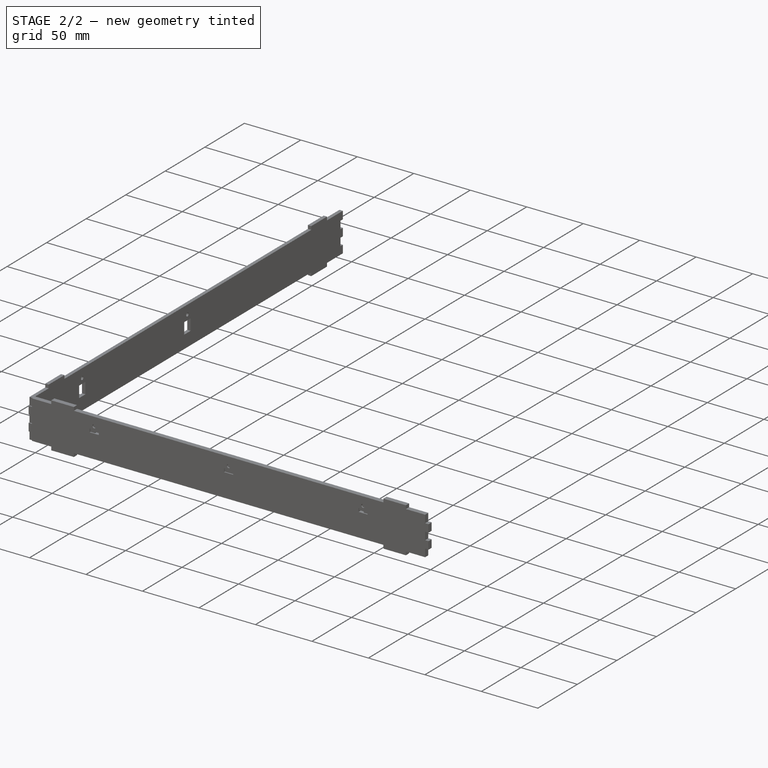
[diagram: stage 2 of 2 — iso view after this stage's code; geometry added in this stage tinted green]
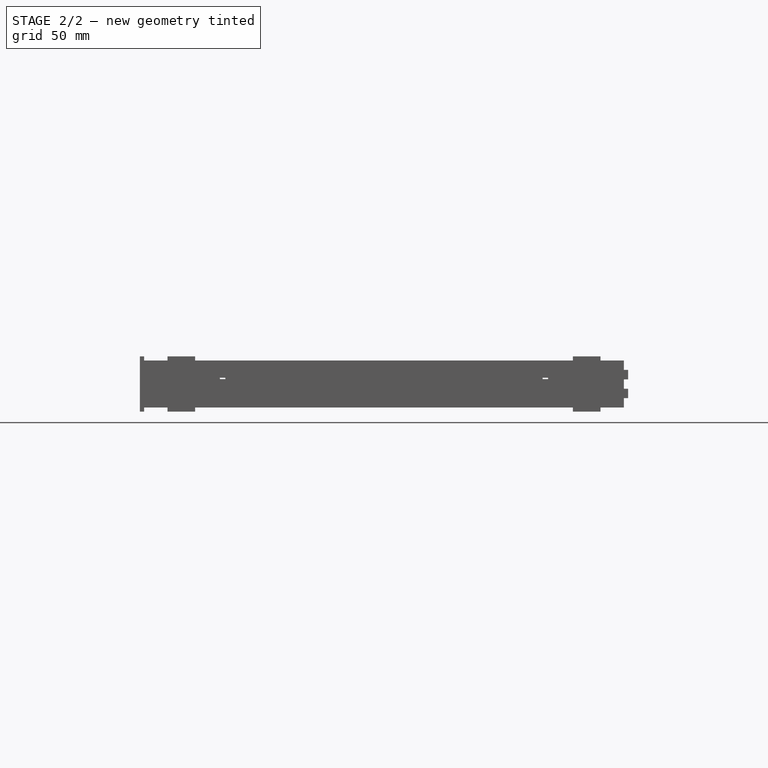
[diagram: stage 2 of 2 — front view after this stage's code; geometry added in this stage tinted green]
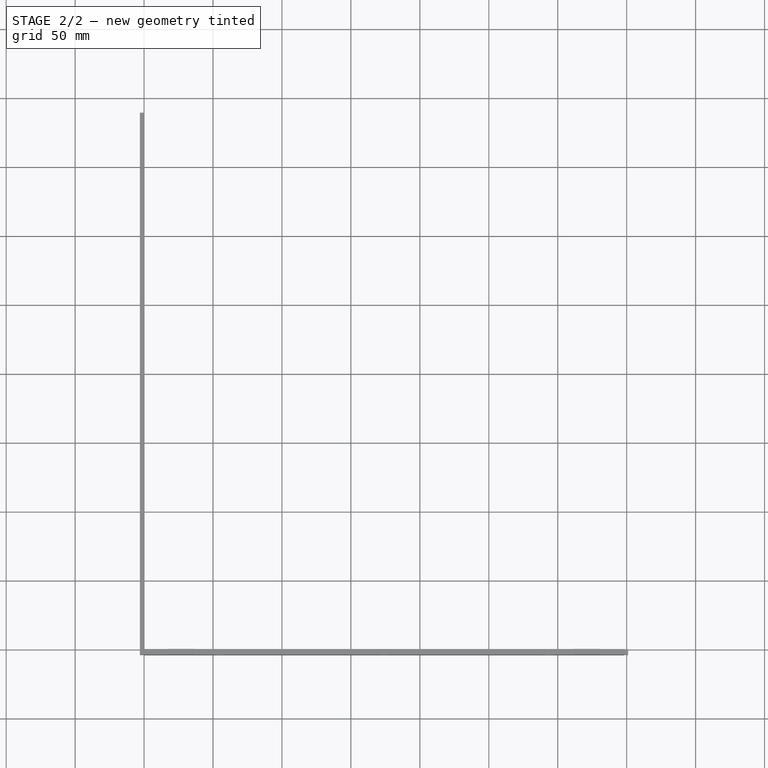
[diagram: stage 2 of 2 — top view after this stage's code; geometry added in this stage tinted green]
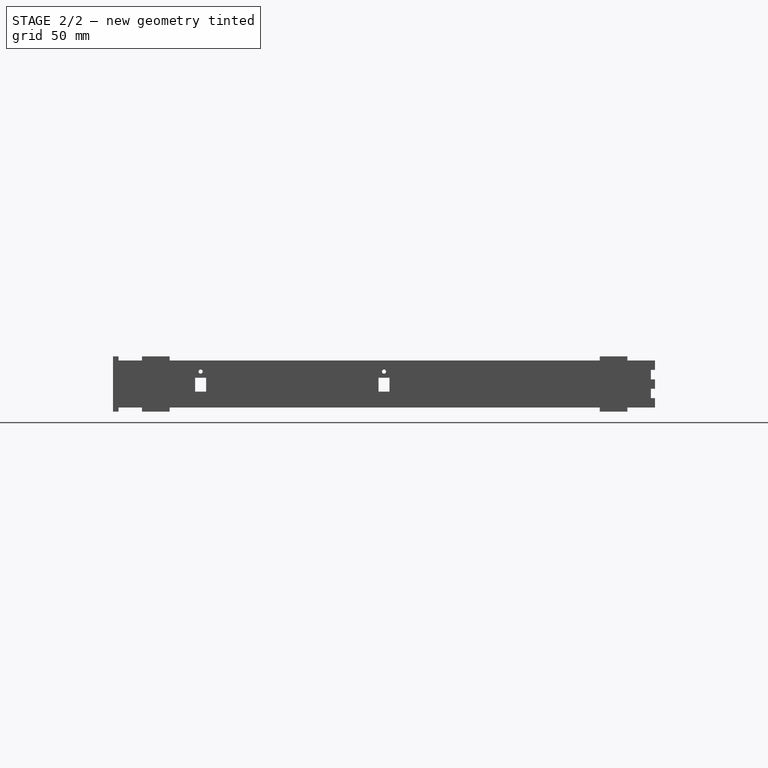
[diagram: stage 2 of 2 — right view after this stage's code; geometry added in this stage tinted green]
FEATURE [Sketcher::SketchObject] Sketch
  FullyConstrained = true
  MapMode = 5
  Placement = pos=(0,0,0) rot=(1,0,0;1.5708rad)
  Support = -> [XZ_Plane]
  expr: Constraints[137] = .Constraints.distance
  expr: Constraints[138] = .Constraints.base - .Constraints.thickness
  expr: Constraints[122] = .Constraints.holedistance
  sketch-geometry (48):
    g0: LineSegment StartX=2e-16 StartY=27.2 StartZ=0 EndX=-3 EndY=27.2 EndZ=0
    g1: LineSegment StartX=-3 StartY=27.2 StartZ=0 EndX=-3 EndY=20.4 EndZ=0
    g2: LineSegment StartX=-3 StartY=20.4 StartZ=0 EndX=0 EndY=20.4 EndZ=0
    g3: LineSegment StartX=-2e-16 StartY=20.4 StartZ=0 EndX=-2e-16 EndY=13.6 EndZ=0
    g4: LineSegment StartX=-2e-16 StartY=13.6 StartZ=0 EndX=-3 EndY=13.6 EndZ=0
    g5: LineSegment StartX=-3 StartY=13.6 StartZ=0 EndX=-3 EndY=6.8 EndZ=0
    g6: LineSegment StartX=-3 StartY=6.8 StartZ=0 EndX=0 EndY=6.8 EndZ=0
    g7: LineSegment StartX=0 StartY=6.8 StartZ=0 EndX=0 EndY=0 EndZ=0
    g8: LineSegment StartX=0 StartY=0 StartZ=0 EndX=17 EndY=0 EndZ=0
    g9: LineSegment StartX=17 StartY=0 StartZ=0 EndX=17 EndY=-3 EndZ=0
    g10: LineSegment StartX=17 StartY=-3 StartZ=0 EndX=37 EndY=-3 EndZ=0
    g11: LineSegment StartX=37 StartY=-3 StartZ=0 EndX=37 EndY=0 EndZ=0
    g12: LineSegment StartX=37 StartY=0 StartZ=0 EndX=311 EndY=0 EndZ=0
    g13: LineSegment StartX=311 StartY=0 StartZ=0 EndX=311 EndY=-3 EndZ=0
    g14: LineSegment StartX=311 StartY=-3 StartZ=0 EndX=331 EndY=-3 EndZ=0
    g15: LineSegment StartX=331 StartY=-3 StartZ=0 EndX=331 EndY=0 EndZ=0
    g16: LineSegment StartX=331 StartY=0 StartZ=0 EndX=348 EndY=0 EndZ=0
    g17: LineSegment StartX=348 StartY=0 StartZ=0 EndX=348 EndY=6.8 EndZ=0
    g18: LineSegment StartX=348 StartY=6.8 StartZ=0 EndX=351 EndY=6.8 EndZ=0
    g19: LineSegment StartX=351 StartY=6.8 StartZ=0 EndX=351 EndY=13.6 EndZ=0
    g20: LineSegment StartX=351 StartY=13.6 StartZ=0 EndX=348 EndY=13.6 EndZ=0
    g21: LineSegment StartX=348 StartY=13.6 StartZ=0 EndX=348 EndY=20.4 EndZ=0
    g22: LineSegment StartX=331 StartY=37 StartZ=0 EndX=311 EndY=37 EndZ=0
    g23: LineSegment StartX=311 StartY=37 StartZ=0 EndX=311 EndY=34 EndZ=0
    g24: LineSegment StartX=311 StartY=34 StartZ=0 EndX=37 EndY=34 EndZ=0
    g25: LineSegment StartX=37 StartY=34 StartZ=0 EndX=37 EndY=37 EndZ=0
    g26: LineSegment StartX=37 StartY=37 StartZ=0 EndX=17 EndY=37 EndZ=0
    g27: LineSegment StartX=2e-16 StartY=27.2 StartZ=0 EndX=2e-16 EndY=34 EndZ=0
    g28: LineSegment StartX=2e-16 StartY=34 StartZ=0 EndX=17 EndY=34 EndZ=0
    g29: LineSegment StartX=17 StartY=34 StartZ=0 EndX=17 EndY=37 EndZ=0
    g30: LineSegment StartX=331 StartY=37 StartZ=0 EndX=331 EndY=34 EndZ=0
    g31: LineSegment StartX=331 StartY=34 StartZ=0 EndX=348 EndY=34 EndZ=0
    g32: LineSegment StartX=348 StartY=34 StartZ=0 EndX=348 EndY=27.2 EndZ=0
    g33: LineSegment StartX=55 StartY=21.5 StartZ=0 EndX=63 EndY=21.5 EndZ=0
    g34: LineSegment StartX=63 StartY=21.5 StartZ=0 EndX=63 EndY=11.5 EndZ=0
    g35: LineSegment StartX=63 StartY=11.5 StartZ=0 EndX=55 EndY=11.5 EndZ=0
    g36: LineSegment StartX=55 StartY=11.5 StartZ=0 EndX=55 EndY=21.5 EndZ=0
    g37: LineSegment StartX=285 StartY=21.5 StartZ=0 EndX=293 EndY=21.5 EndZ=0
    g38: LineSegment StartX=293 StartY=21.5 StartZ=0 EndX=293 EndY=11.5 EndZ=0
    g39: LineSegment StartX=293 StartY=11.5 StartZ=0 EndX=285 EndY=11.5 EndZ=0
    g40: LineSegment StartX=285 StartY=11.5 StartZ=0 EndX=285 EndY=21.5 EndZ=0
    g41: GeomPoint X=289 Y=21.5 Z=0
    g42: GeomPoint X=59 Y=21.5 Z=0
    g43: Circle CenterX=59 CenterY=26 CenterZ=0 NormalX=0 NormalY=0 NormalZ=1 AngleXU=0 Radius=1.5
    g44: Circle CenterX=289 CenterY=26 CenterZ=0 NormalX=0 NormalY=0 NormalZ=1 AngleXU=0 Radius=1.5
    g45: LineSegment StartX=348 StartY=27.2 StartZ=0 EndX=351 EndY=27.2 EndZ=0
    g46: LineSegment StartX=351 StartY=27.2 StartZ=0 EndX=351 EndY=20.4 EndZ=0
    g47: LineSegment StartX=351 StartY=20.4 StartZ=0 EndX=348 EndY=20.4 EndZ=0
  constraints (139):
    c: Horizontal(g0)
    c: Coincident(g0,g1)
    c: Vertical(g1)
    c: Coincident(g1,g2)
    c: Horizontal(g2)
    c: Coincident(g2,g3)
    c: Vertical(g3)
    c: Coincident(g3,g4)
    c: Horizontal(g4)
    c: Coincident(g4,g5)
    c: Coincident(g5,g6)
    c: Horizontal(g6)
    c: Coincident(g6,g7)
    c: Vertical(g7)
    c: Coincident(g7,g8)
    c: Horizontal(g8)
    c: Coincident(g8,g9)
    c: Vertical(g9)
    c: Coincident(g9,g10)
    c: Horizontal(g10)
    c: Coincident(g10,g11)
    c: Vertical(g11)
    c: Coincident(g11,g12)
    c: Horizontal(g12)
    c: Coincident(g12,g13)
    c: Vertical(g13)
    c: Coincident(g13,g14)
    c: Horizontal(g14)
    c: Coincident(g14,g15)
    c: Vertical(g15)
    c: Coincident(g15,g16)
    c: Horizontal(g16)
    c: Coincident(g16,g17)
    c: Vertical(g17)
    c: Coincident(g17,g18)
    c: Horizontal(g18)
    c: Coincident(g18,g19)
    c: Vertical(g19)
    c: Coincident(g19,g20)
    c: Horizontal(g20)
    c: Coincident(g20,g21)
    c: Horizontal(g22)
    c: Coincident(g22,g23)
    c: Coincident(g23,g24)
    c: Horizontal(g24)
    c: Coincident(g24,g25)
    c: Vertical(g25)
    c: Coincident(g25,g26)
    c: Horizontal(g26)
    c: Vertical(g5)
    c: Vertical(g21)
    c: Vertical(g23)
    c: Equal(g25,g23)
    c: Equal(g23,g9)
    c: Equal(g9,g11)
    c: Equal(g11,g13)
    c: Equal(g13,g15)
    c: DistanceY(g25,g25) = 3  'baseplate'
    c: Coincident(g0,g27)
    c: Vertical(g27)
    c: Coincident(g27,g28)
    c: Horizontal(g28)
    c: Coincident(g28,g29)
    c: Coincident(g29,g26)
    c: Coincident(g22,g30)
    c: Vertical(g30)
    c: Coincident(g30,g31)
    c: Horizontal(g31)
    c: Coincident(g31,g32)
    c: Vertical(g32)
    c: Equal(g30,g29)
    c: Equal(g29,g25)
    c: Vertical(g29)
    c: Equal(g14,g10)
    c: Equal(g10,g22)
    c: DistanceX(g26,g26) = 20  'base'
    c: Equal(g26,g10)
    c: Equal(g28,g8)
    c: Equal(g8,g31)
    c: Equal(g31,g16)
    c: DistanceY(g7,g27) = 34  'height'
    c: Equal(g0,g2)
    c: Equal(g2,g4)
    c: Equal(g4,g6)
    c: Equal(g20,g18)
    c: DistanceX(g0,g0) = 3  'thickness'
    c: Equal(g19,g21)
    c: Equal(g19,g17)
    c: Equal(g1,g27)
    c: Equal(g1,g3)
    c: Equal(g3,g5)
    c: Equal(g5,g7)
    c: Coincident(g7,g-1)
    c: Coincident(g33,g34)
    c: Coincident(g34,g35)
    c: Coincident(g35,g36)
    c: Coincident(g36,g33)
    c: Horizontal(g33)
    c: Horizontal(g35)
    c: Vertical(g34)
    c: Vertical(g36)
    c: Coincident(g37,g38)
    c: Coincident(g38,g39)
    c: Coincident(g39,g40)
    c: Coincident(g40,g37)
    c: Horizontal(g37)
    c: Horizontal(g39)
    c: Vertical(g38)
    c: Vertical(g40)
    c: DistanceY(g36,g36) = 10  'noseheight'
    c: DistanceX(g33,g33) = 8  'nosewidth'
    c: Equal(g40,g36)
    c: Equal(g37,g33)
    c: DistanceY(g33,g27) = 12.5  'nosedistance'
    c: DistanceX(g0,g33) = 58  'distance'
    c: Horizontal(g37,g33)
    c: Symmetric(g37,g37,g41)
    c: Symmetric(g33,g33,g42)
    c: Equal(g44,g43)
    c: Diameter(g43) = 3  'hole'
    c: Vertical(g43,g42)
    c: DistanceY(g42,g43) = 4.5  'holedistance'
    c: DistanceY(g41,g44) = 4.5
    c: Vertical(g44,g41)
    c: Coincident(g32,g45)
    c: Horizontal(g45)
    c: Coincident(g45,g46)
    c: Vertical(g46)
    c: Coincident(g46,g47)
    c: Coincident(g47,g21)
    c: Horizontal(g47)
    c: Equal(g45,g47)
    c: Equal(g47,g20)
    c: Equal(g46,g21)
    c: Equal(g21,g32)
    c: Equal(g45,g0)
    c: DistanceX(g0,g45) = 354  'length'
    c: DistanceX(g37,g45) = 58
    c: DistanceX(g28,g28) = 17
FEATURE [PartDesign::Pad] Pad
  Direction = (1,1,1)
  Length = 3
  Length2 = 100
  Placement = pos=(0,0,0) rot=(1,0,0;1.5708rad)
  Profile = -> Sketch
  Refine = true
  Type = 0
FEATURE [PartDesign::Body] Body  label="top"
  Group = -> [Sketch,Pad]
  Origin = -> Origin
  Tip = -> Pad
FEATURE [Sketcher::SketchObject] Sketch001
  FullyConstrained = true
  MapMode = 5
  Placement = pos=(0,0,0) rot=(0.57735,0.57735,0.57735;2.0944rad)
  Support = -> [YZ_Plane001]
  expr: Constraints[51] = <<Sketch>>.Constraints.baseplate
  expr: Constraints[56] = <<Sketch>>.Constraints.thickness
  expr: Constraints[43] = <<Sketch>>.Constraints.base
  expr: Constraints[77] = <<Sketch>>.Constraints.height
  expr: Constraints[126] = <<Sketch>>.Constraints.nosedistance
  expr: Constraints[135] = <<Sketch>>.Constraints.holedistance
  expr: Constraints[128] = <<Sketch>>.Constraints.noseheight
  expr: Constraints[129] = <<Sketch>>.Constraints.nosewidth
  expr: Constraints[134] = <<Sketch>>.Constraints.holedistance
  expr: Constraints[136] = <<Sketch>>.Constraints.hole
  sketch-geometry (48):
    g0: LineSegment StartX=-3 StartY=20.4 StartZ=0 EndX=-3 EndY=13.6 EndZ=0
    g1: LineSegment StartX=-3 StartY=6.8 StartZ=0 EndX=-3 EndY=0 EndZ=0
    g2: LineSegment StartX=17 StartY=0 StartZ=0 EndX=17 EndY=-3 EndZ=0
    g3: LineSegment StartX=17 StartY=-3 StartZ=0 EndX=37 EndY=-3 EndZ=0
    g4: LineSegment StartX=37 StartY=-3 StartZ=0 EndX=37 EndY=-4.67009e-11 EndZ=0
    g5: LineSegment StartX=37 StartY=-4.67009e-11 StartZ=0 EndX=349 EndY=-4.67009e-11 EndZ=0
    g6: LineSegment StartX=349 StartY=-4.67009e-11 StartZ=0 EndX=349 EndY=-3 EndZ=0
    g7: LineSegment StartX=349 StartY=-3 StartZ=0 EndX=369 EndY=-3 EndZ=0
    g8: LineSegment StartX=369 StartY=-3 StartZ=0 EndX=369 EndY=-9.66294e-11 EndZ=0
    g9: LineSegment StartX=369 StartY=-9.66294e-11 StartZ=0 EndX=389 EndY=-9.66294e-11 EndZ=0
    g10: LineSegment StartX=386 StartY=20.4 StartZ=0 EndX=386 EndY=27.2 EndZ=0
    g11: LineSegment StartX=386 StartY=27.2 StartZ=0 EndX=389 EndY=27.2 EndZ=0
    g12: LineSegment StartX=389 StartY=27.2 StartZ=0 EndX=389 EndY=34 EndZ=0
    g13: LineSegment StartX=389 StartY=34 StartZ=0 EndX=369 EndY=34 EndZ=0
    g14: LineSegment StartX=369 StartY=34 StartZ=0 EndX=369 EndY=37 EndZ=0
    g15: LineSegment StartX=369 StartY=37 StartZ=0 EndX=349 EndY=37 EndZ=0
    g16: LineSegment StartX=349 StartY=37 StartZ=0 EndX=349 EndY=34 EndZ=0
    g17: LineSegment StartX=349 StartY=34 StartZ=0 EndX=37 EndY=34 EndZ=0
    g18: LineSegment StartX=37 StartY=34 StartZ=0 EndX=37 EndY=37 EndZ=0
    g19: LineSegment StartX=37 StartY=37 StartZ=0 EndX=17 EndY=37 EndZ=0
    g20: LineSegment StartX=17 StartY=37 StartZ=0 EndX=17 EndY=34 EndZ=0
    g21: LineSegment StartX=17 StartY=34 StartZ=0 EndX=-3 EndY=34 EndZ=0
    g22: LineSegment StartX=-3 StartY=27.2 StartZ=0 EndX=-3 EndY=34 EndZ=0
    g23: LineSegment StartX=188.5 StartY=21.5 StartZ=0 EndX=196.5 EndY=21.5 EndZ=0
    g24: LineSegment StartX=196.5 StartY=21.5 StartZ=0 EndX=196.5 EndY=11.5 EndZ=0
    g25: LineSegment StartX=196.5 StartY=11.5 StartZ=0 EndX=188.5 EndY=11.5 EndZ=0
    g26: LineSegment StartX=188.5 StartY=11.5 StartZ=0 EndX=188.5 EndY=21.5 EndZ=0
    g27: LineSegment StartX=63.5 StartY=21.5 StartZ=0 EndX=55.5 EndY=21.5 EndZ=0
    g28: LineSegment StartX=55.5 StartY=21.5 StartZ=0 EndX=55.5 EndY=11.5 EndZ=0
    g29: LineSegment StartX=55.5 StartY=11.5 StartZ=0 EndX=63.5 EndY=11.5 EndZ=0
    g30: LineSegment StartX=63.5 StartY=11.5 StartZ=0 EndX=63.5 EndY=21.5 EndZ=0
    g31: Circle CenterX=192.5 CenterY=26 CenterZ=0 NormalX=0 NormalY=0 NormalZ=1 AngleXU=0 Radius=1.5
    g32: Circle CenterX=59.5 CenterY=26 CenterZ=0 NormalX=0 NormalY=0 NormalZ=1 AngleXU=0 Radius=1.5
    g33: GeomPoint X=192.5 Y=21.5 Z=0
    g34: GeomPoint X=59.5 Y=21.5 Z=0
    g35: LineSegment StartX=-3 StartY=0 StartZ=0 EndX=17 EndY=0 EndZ=0
    g36: LineSegment StartX=386 StartY=20.4 StartZ=0 EndX=389 EndY=20.4 EndZ=0
    g37: LineSegment StartX=389 StartY=20.4 StartZ=0 EndX=389 EndY=13.6 EndZ=0
    g38: LineSegment StartX=389 StartY=13.6 StartZ=0 EndX=386 EndY=13.6 EndZ=0
    g39: LineSegment StartX=386 StartY=13.6 StartZ=0 EndX=386 EndY=6.8 EndZ=0
    g40: LineSegment StartX=386 StartY=6.8 StartZ=0 EndX=389 EndY=6.8 EndZ=0
    g41: LineSegment StartX=389 StartY=6.8 StartZ=0 EndX=389 EndY=-9.66294e-11 EndZ=0
    g42: LineSegment StartX=-3 StartY=27.2 StartZ=0 EndX=-2.22524e-11 EndY=27.2 EndZ=0
    g43: LineSegment StartX=-2.22524e-11 StartY=27.2 StartZ=0 EndX=-2.22524e-11 EndY=20.4 EndZ=0
    g44: LineSegment StartX=-2.22524e-11 StartY=20.4 StartZ=0 EndX=-3 EndY=20.4 EndZ=0
    g45: LineSegment StartX=-3 StartY=13.6 StartZ=0 EndX=0 EndY=13.6 EndZ=0
    g46: LineSegment StartX=0 StartY=13.6 StartZ=0 EndX=0 EndY=6.8 EndZ=0
    g47: LineSegment StartX=0 StartY=6.8 StartZ=0 EndX=-3 EndY=6.8 EndZ=0
  constraints (140):
    c: Vertical(g2)
    c: Coincident(g2,g3)
    c: Horizontal(g3)
    c: Coincident(g3,g4)
    c: Coincident(g4,g5)
    c: Horizontal(g5)
    c: Coincident(g5,g6)
    c: Coincident(g6,g7)
    c: Horizontal(g7)
    c: Coincident(g7,g8)
    c: Vertical(g8)
    c: Coincident(g8,g9)
    c: Vertical(g10)
    c: Coincident(g10,g11)
    c: Horizontal(g11)
    c: Coincident(g11,g12)
    c: Vertical(g12)
    c: Coincident(g12,g13)
    c: Horizontal(g13)
    c: Coincident(g13,g14)
    c: Vertical(g14)
    c: Coincident(g14,g15)
    c: Horizontal(g15)
    c: Coincident(g15,g16)
    c: Vertical(g16)
    c: Coincident(g16,g17)
    c: Horizontal(g17)
    c: Coincident(g17,g18)
    c: Vertical(g18)
    c: Coincident(g18,g19)
    c: Horizontal(g19)
    c: Coincident(g19,g20)
    c: Vertical(g20)
    c: Coincident(g20,g21)
    c: Horizontal(g21)
    c: Vertical(g6)
    c: Vertical(g4)
    c: Horizontal(g9)
    c: Equal(g13,g15)
    c: Equal(g15,g9)
    c: Equal(g9,g7)
    c: Equal(g7,g3)
    c: Equal(g21,g19)
    c: DistanceX(g15,g15) = 20
    c: Equal(g14,g16)
    c: Equal(g16,g18)
    c: Equal(g18,g20)
    c: Equal(g20,g2)
    c: Equal(g2,g4)
    c: Equal(g4,g6)
    c: Equal(g6,g8)
    c: DistanceY(g14,g14) = 3
    c: Vertical(g1)
    c: Vertical(g22)
    c: Equal(g12,g10)
    c: Vertical(g0)
    c: DistanceX(g11,g11) = 3
    c: Coincident(g23,g24)
    c: Coincident(g24,g25)
    c: Coincident(g25,g26)
    c: Coincident(g26,g23)
    c: Horizontal(g23)
    c: Horizontal(g25)
    c: Vertical(g24)
    c: Vertical(g26)
    c: Coincident(g27,g28)
    c: Coincident(g28,g29)
    c: Coincident(g29,g30)
    c: Coincident(g30,g27)
    c: Horizontal(g27)
    c: Horizontal(g29)
    c: Vertical(g28)
    c: Vertical(g30)
    c: Equal(g31,g32)
    c: Equal(g26,g30)
    c: Equal(g23,g27)
    c: Coincident(g21,g22)
    c: DistanceY(g1,g21) = 34
    c: Coincident(g35,g1)
    c: Coincident(g35,g2)
    c: DistanceX(g21,g12) = 392  'length'
    c: Coincident(g10,g36)
    c: Horizontal(g36)
    c: Coincident(g36,g37)
    c: Vertical(g37)
    c: Coincident(g37,g38)
    c: Horizontal(g38)
    c: Coincident(g38,g39)
    c: Vertical(g39)
    c: Coincident(g39,g40)
    c: Horizontal(g40)
    c: Coincident(g40,g41)
    c: Vertical(g41)
    c: Equal(g11,g36)
    c: Equal(g36,g38)
    c: Equal(g38,g40)
    c: Coincident(g41,g9)
    c: Equal(g41,g39)
    c: Equal(g39,g37)
    c: Equal(g37,g10)
    c: Coincident(g22,g42)
    c: Horizontal(g42)
    c: Coincident(g42,g43)
    c: Vertical(g43)
    c: Coincident(g43,g44)
    c: Coincident(g44,g0)
    c: Coincident(g0,g45)
    c: Horizontal(g45)
    c: Coincident(g45,g46)
    c: Vertical(g46)
    c: Coincident(g46,g47)
    c: Coincident(g47,g1)
    c: Horizontal(g47)
    c: Horizontal(g44)
    c: Equal(g42,g44)
    c: Equal(g44,g45)
    c: Equal(g45,g47)
    c: Equal(g47,g11)
    c: Equal(g22,g43)
    c: Equal(g43,g0)
    c: Equal(g0,g46)
    c: Equal(g46,g1)
    c: Horizontal(g35)
    c: DistanceX(g-1,g1) = -3
    c: Equal(g3,g35)
    c: Equal(g35,g21)
    c: DistanceY(g27,g21) = 12.5
    c: Horizontal(g23,g27)
    c: DistanceY(g28,g28) = 10
    c: DistanceX(g27,g27) = 8
    c: Symmetric(g27,g27,g34)
    c: Symmetric(g23,g23,g33)
    c: Vertical(g31,g33)
    c: Vertical(g32,g34)
    c: DistanceY(g34,g32) = 4.5
    c: DistanceY(g33,g31) = 4.5
    c: Diameter(g32) = 3
    c: DistanceX(g21,g27) = 58.5  'firstnose'
    c: Horizontal(g1,g-1)
    c: DistanceX(g21,g23) = 191.5  'secondnose'
FEATURE [PartDesign::Pad] Pad001
  Direction = (1,1,1)
  Length = 3
  Length2 = 100
  Placement = pos=(0,0,0) rot=(0.57735,0.57735,0.57735;2.0944rad)
  Profile = -> Sketch001
  Refine = true
  Reversed = true
  Type = 0
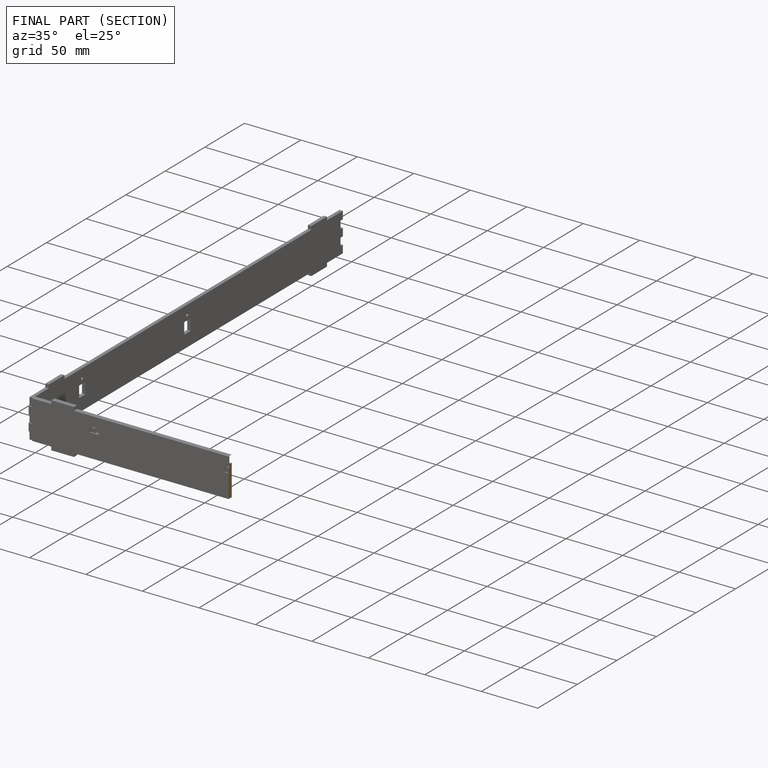
[diagram: finished part — half-section view (interior)]
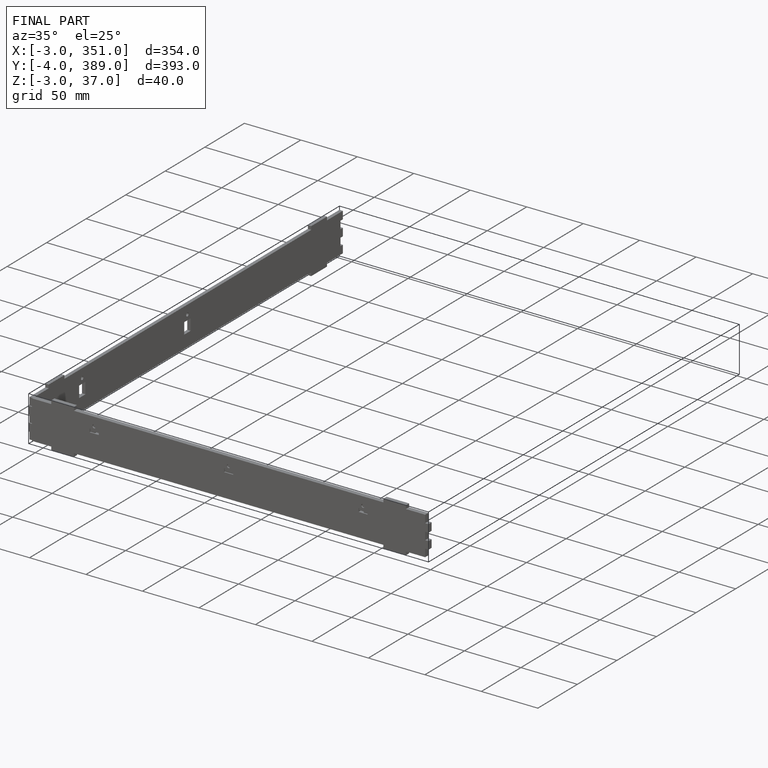
[diagram: finished part — iso view with bounding-box wireframe]
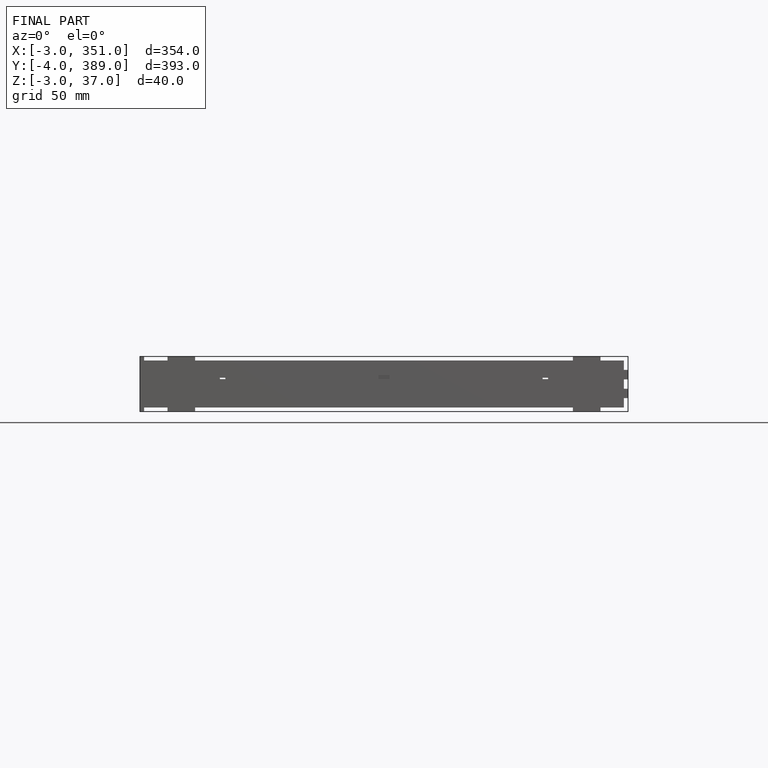
[diagram: finished part — front view with bounding-box wireframe]
